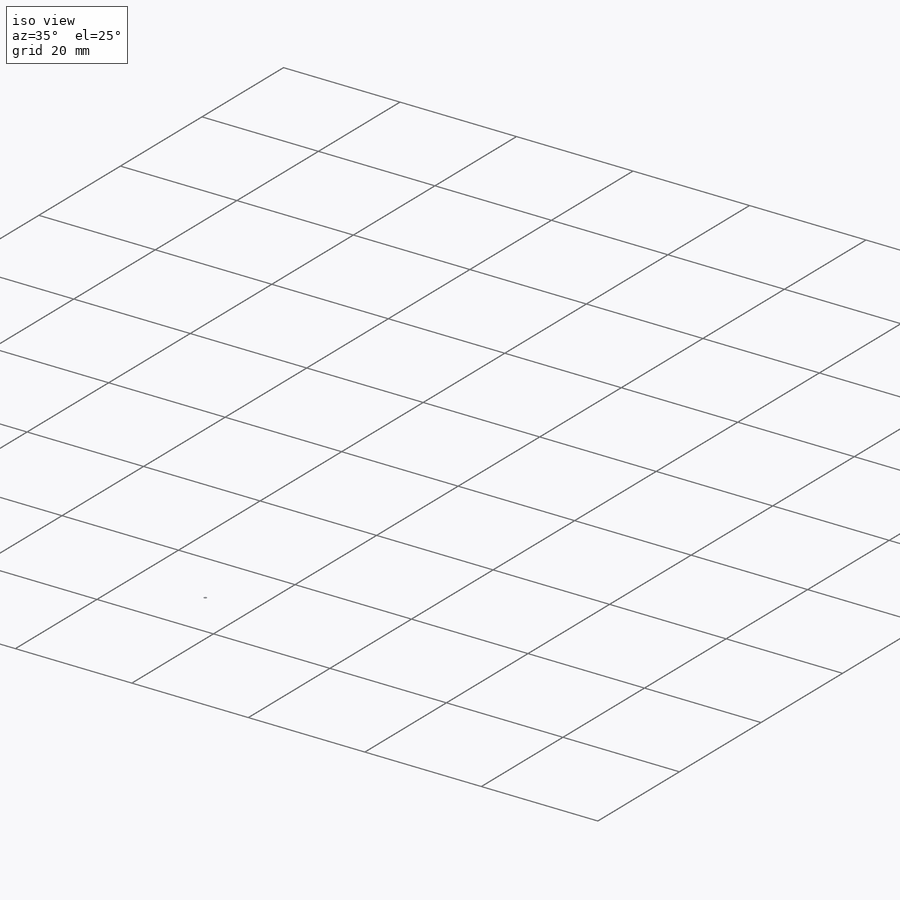
[diagram: iso view]
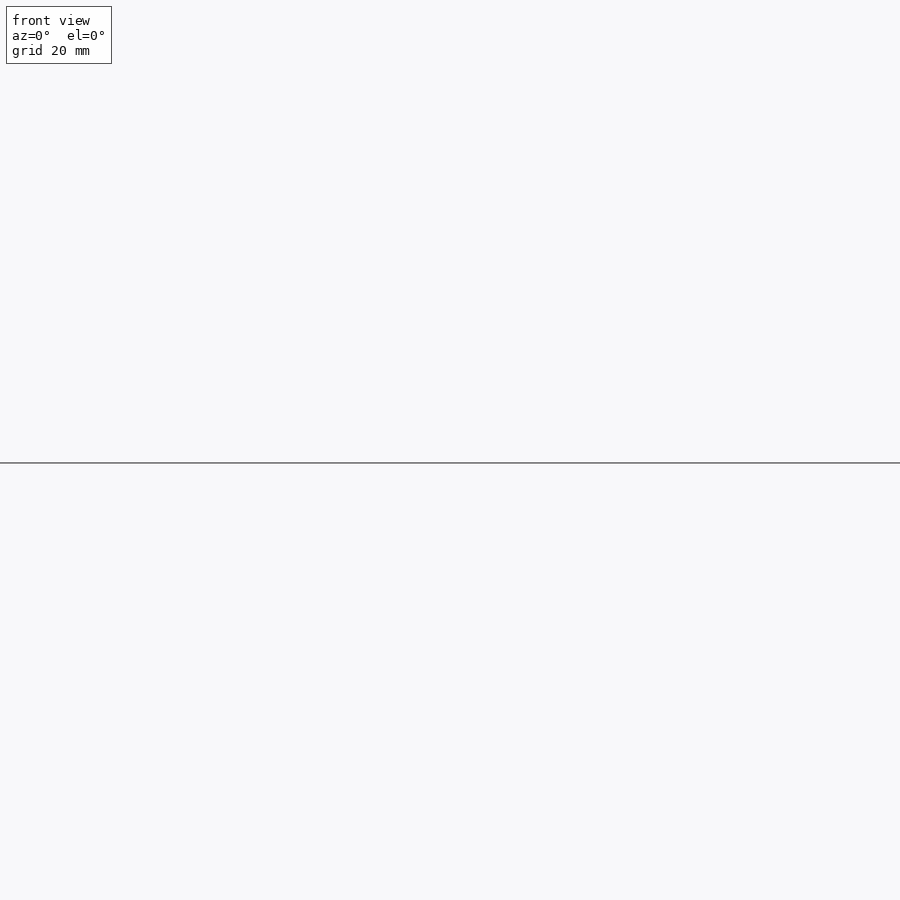
[diagram: front view]
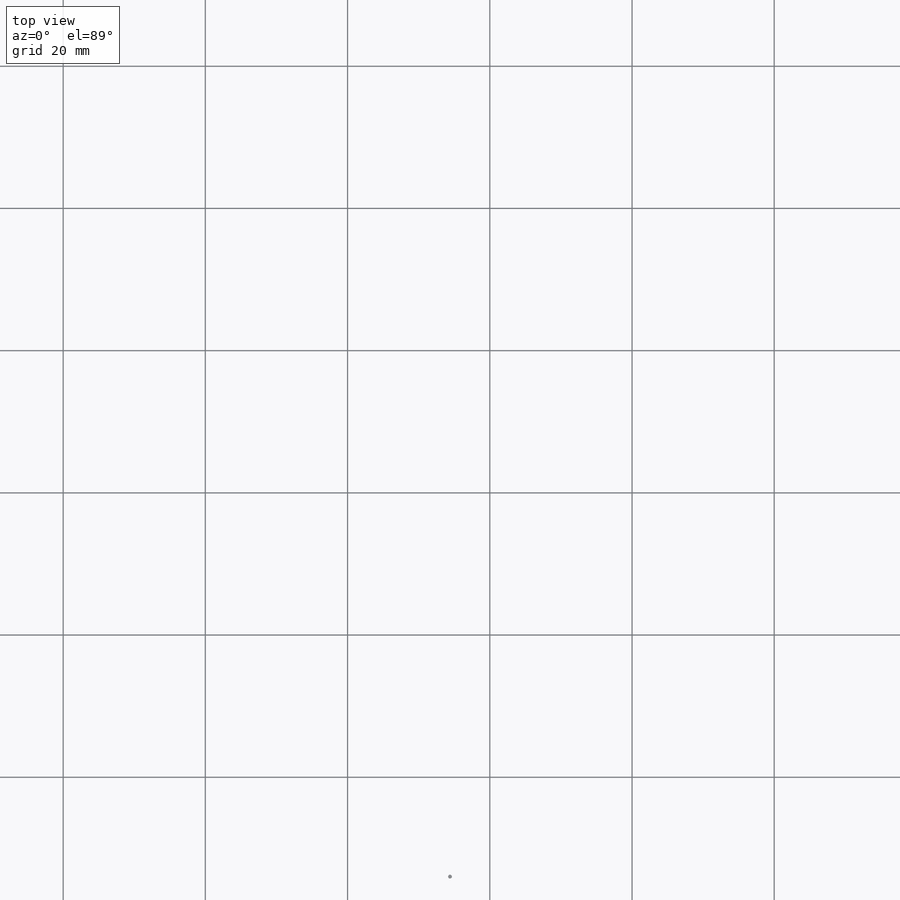
[diagram: top view]
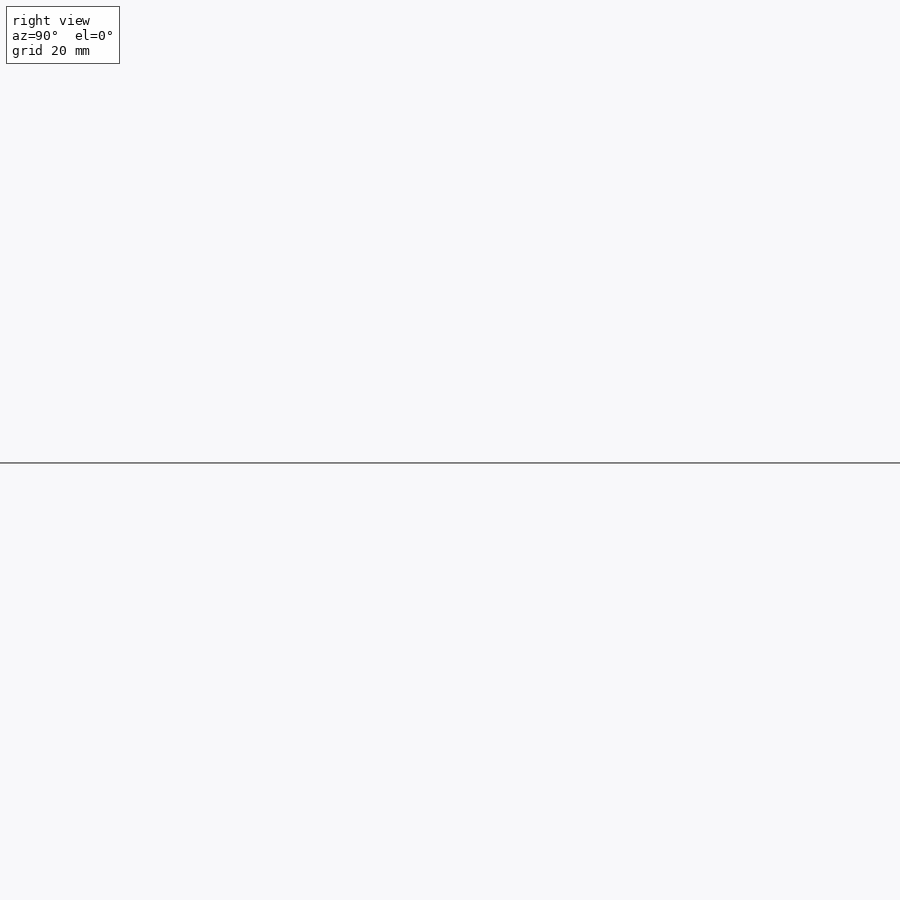
[diagram: right view]
SOLIDWORKS PART (.sldprt)
format: sldprt  version: not decoded by parser v0  size: 3,470,336 bytes
history: native  units: mm
features: plane x12, sketch x7, material x1, helix x1 (+8 scaffold rows collapsed)
feature tree (29):
  scaffold x8  (default folders/planes/origin — collapsed)
  material  "Material <nicht festgelegt>"
  plane  "Ebene vorne"
  plane  "Ebene oben"
  plane  "Ebene rechts"
  sketch  "Skizze1"  dims[D1=113.2mm]
  helix  "Spirale/Helix1"  Pitch=6mm
  plane  "Ebene1"
  sketch  "Skizze5"  dims[D1=113.2mm Spirale/Helix5=0.0 D3=39.1mm D4=2.3mm D5=17000.0mm D7=180.0deg]
  plane  "Ebene5"
  sketch  "Skizze6"  dims[D1=113.2mm Spirale/Helix6=0.0 D3=29.8mm D4=14.9mm D5=2000.0mm D7=180.0deg]
  plane  "Ebene8"
  plane  "Ebene9"
  sketch  "Skizze7"  dims[D1=113.2mm Spirale/Helix7=0.0 D3=39.1mm D4=2.3mm D5=17000.0mm D7=180.0deg]
  plane  "Ebene10"
  sketch  "Skizze8"  dims[D1=113.2mm Spirale/Helix8=0.0 D3=6.0mm D4=6.0mm D5=1000.0mm D6=56.3deg D7=180.0deg]
  plane  "Ebene11"
  plane  "Ebene12"
  plane  "Ebene13"
  plane  "Ebene14"
  sketch  "Skizze9"  dims[D1=0.54mm]
  sketch  "Skizze10"  dims[D1=0.54mm]
decode coverage: 8 of 8 modeling features carry decoded parameters
note: suppression state not decoded; provenance and decode notes live in map.json
